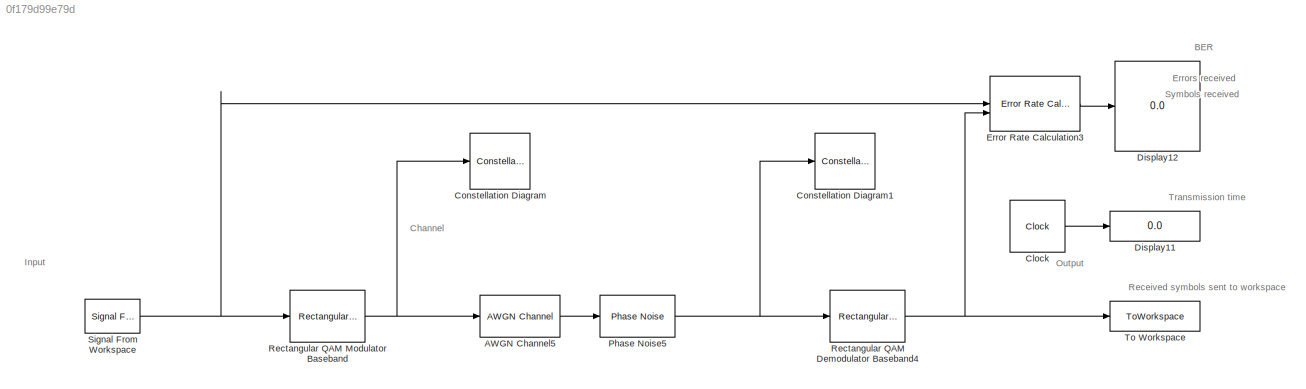
MODEL slx_0f179d99e79d
KIND model
CONFIG AbsTol = auto
CONFIG EnableMultiTasking = off
CONFIG FixedStep = 1/fs
CONFIG MaxStep = auto
CONFIG MinStep = auto
CONFIG RelTol = 1e-3
CONFIG SampleTimeConstraint = Unconstrained
CONFIG SolverName = FixedStepDiscrete
CONFIG StartTime = 0.0
CONFIG StopTime = inf
BLOCK [Reference] AWGN Channel5  REF=commchan3/AWGN
Channel
  SourceBlock = commchan3/AWGN\nChannel
  SourceType = AWGN Channel
  UserDataPersistent = on
BLOCK [Clock] Clock
  Decimation = 1000
BLOCK [ConstellationDiagram] Constellation Diagram
  DefaultConfigurationName = comm.scopes.ConstellationDiagramBlockCfg
  GraphicalSettings = {"GraphicalSettings":{"Style":{"AuxLineProperties":"struct","AxesProperties":"struct","Box":"on","Color":"[0 0 0]","CurrentConfiguration":"extmgr.ConfigurationSet","FontName":"Helvetica","FontSize":"10","FontUnits":"points","FontWeight":"normal","LineColor":"[1 1 0.0666666666666667]","LineProperties":"struct","LineStyle":"-","LineWidth":"0.5","Marker":".","MarkerEdgeColor":"auto","MarkerFaceColor"...<+715ch>
  ScopeFrameLocation = window
  ScopeSpecificationString = comm.scopes.ConstellationDiagramBlockCfg('CurrentConfiguration', extmgr.ConfigurationSet(extmgr.Configuration('Core','General UI',true),extmgr.Configuration('Core','Source UI',true),extmgr.Configuration('Sources','WiredSimulink',true),extmgr.Configuration('Sources','SimulinkEvent',false),extmgr.Configuration('Sources','Simulink',false),extmgr.Configuration('Sources','SPTool',false),extmgr.Configur...<+2047ch>
  WasSavedAsWebScope = on
  WindowPosition = [54.000000,488.000000,410.000000,300.000000,]
  XLimits = [-1.5006 1.5006]
  YLimits = [-1.5006 1.5006]
BLOCK [ConstellationDiagram] Constellation Diagram1
  DefaultConfigurationName = comm.scopes.ConstellationDiagramBlockCfg
  GraphicalSettings = {"GraphicalSettings":{"Style":{"AuxLineProperties":"struct","AxesProperties":"struct","Box":"on","Color":"[0 0 0]","CurrentConfiguration":"extmgr.ConfigurationSet","FontName":"Helvetica","FontSize":"10","FontUnits":"points","FontWeight":"normal","LineColor":"[1 1 0.0666666666666667]","LineProperties":"struct","LineStyle":"-","LineWidth":"0.5","Marker":".","MarkerEdgeColor":"auto","MarkerFaceColor"...<+714ch>
  ScopeFrameLocation = window
  ScopeSpecificationString = comm.scopes.ConstellationDiagramBlockCfg('CurrentConfiguration', extmgr.ConfigurationSet(extmgr.Configuration('Core','General UI',true),extmgr.Configuration('Core','Source UI',true),extmgr.Configuration('Sources','WiredSimulink',true),extmgr.Configuration('Sources','SimulinkEvent',false),extmgr.Configuration('Sources','Simulink',false),extmgr.Configuration('Sources','SPTool',false),extmgr.Configur...<+2046ch>
  WasSavedAsWebScope = on
  WindowPosition = [56.000000,96.000000,410.000000,300.000000,]
  XLimits = [-1.5006 1.5006]
  YLimits = [-1.5006 1.5006]
BLOCK [Display] Display11
  Decimation = 1000
  Format = long
BLOCK [Display] Display12
  Decimation = 1
BLOCK [Reference] Error Rate Calculation3  REF=commsink2/Error Rate
Calculation
  SourceBlock = commsink2/Error Rate\nCalculation
  SourceType = Error Rate Calculation
BLOCK [Reference] Phase Noise5  REF=impairlib/Phase
Noise
  SourceBlock = impairlib/Phase\nNoise
  SourceType = Phase Noise
BLOCK [Reference] Rectangular QAM Demodulator Baseband4  REF=commdigbbndam3/Rectangular QAM
Demodulator
Baseband
  SourceBlock = commdigbbndam3/Rectangular QAM\nDemodulator\nBaseband
  SourceType = Rectangular QAM Demodulator Baseband
BLOCK [Reference] Rectangular QAM Modulator Baseband  REF=commdigbbndam3/Rectangular QAM
Modulator
Baseband
  SourceBlock = commdigbbndam3/Rectangular QAM\nModulator\nBaseband
  SourceType = Rectangular QAM Modulator Baseband
BLOCK [Reference] Signal From Workspace  REF=dspsrcs4/Signal From
Workspace
  SourceBlock = dspsrcs4/Signal From\nWorkspace
  SourceType = Signal From Workspace
BLOCK [ToWorkspace] To Workspace
  FixptAsFi = on
  MaxDataPoints = inf
  SampleTime = -1
  Save2DSignal = 2-D array (concatenate along first dimension)
  VariableName = simout
ANNOTATION (root): BER
ANNOTATION (root): Errors received
ANNOTATION (root): Received symbols sent to workspace
ANNOTATION (root): Symbols received
ANNOTATION (root): Transmission time
ANNOTATION (root): Channel
ANNOTATION (root): Input
ANNOTATION (root): Output
LINE AWGN Channel5:1 -> Phase Noise5:1
LINE Clock:1 -> Display11:1
LINE Error Rate Calculation3:1 -> Display12:1
NET Phase Noise5:1 -> Constellation Diagram1:1, Rectangular QAM Demodulator Baseband4:1
NET Rectangular QAM Demodulator Baseband4:1 -> Error Rate Calculation3:2, To Workspace:1
NET Rectangular QAM Modulator Baseband:1 -> AWGN Channel5:1, Constellation Diagram:1
NET Signal From Workspace:1 -> Error Rate Calculation3:1, Rectangular QAM Modulator Baseband:1
note: NET lines group one-source signal fan-out (src -> all destinations, sorted); 1:1 wires keep LINE
